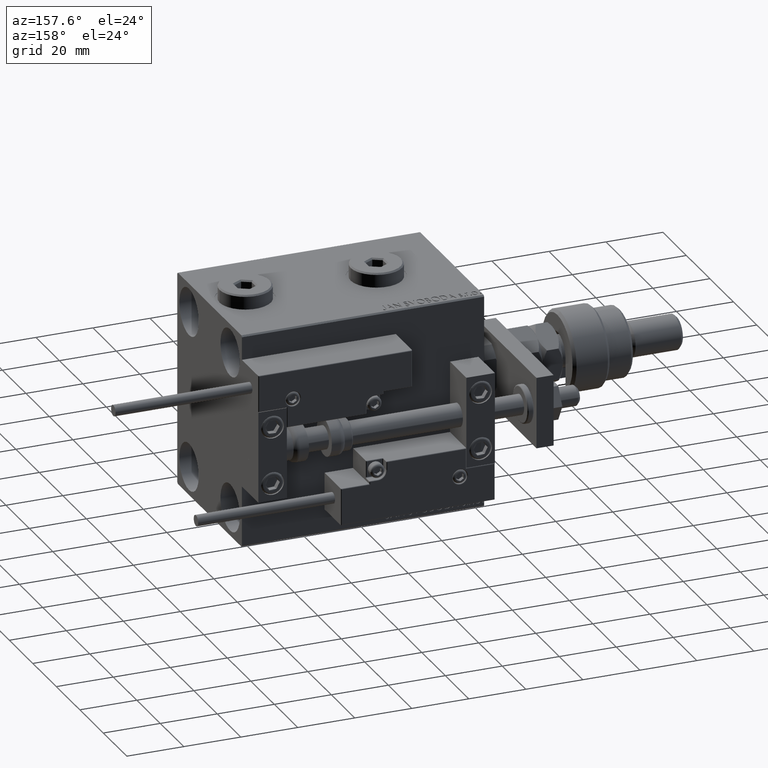
[diagram: clean part render]
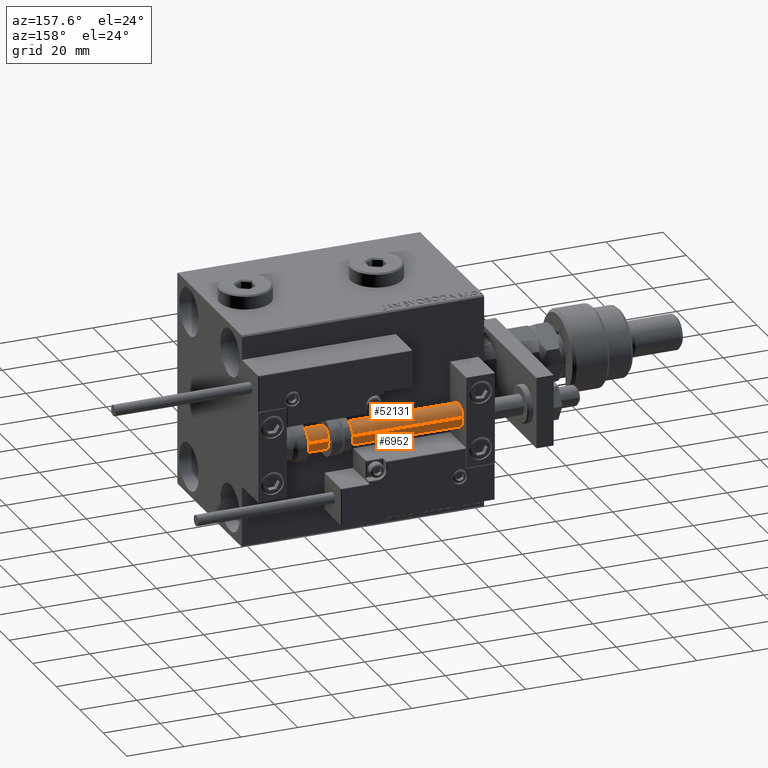
[diagram: same view with one multi-face feature highlighted, each face labeled with its STEP entity id]
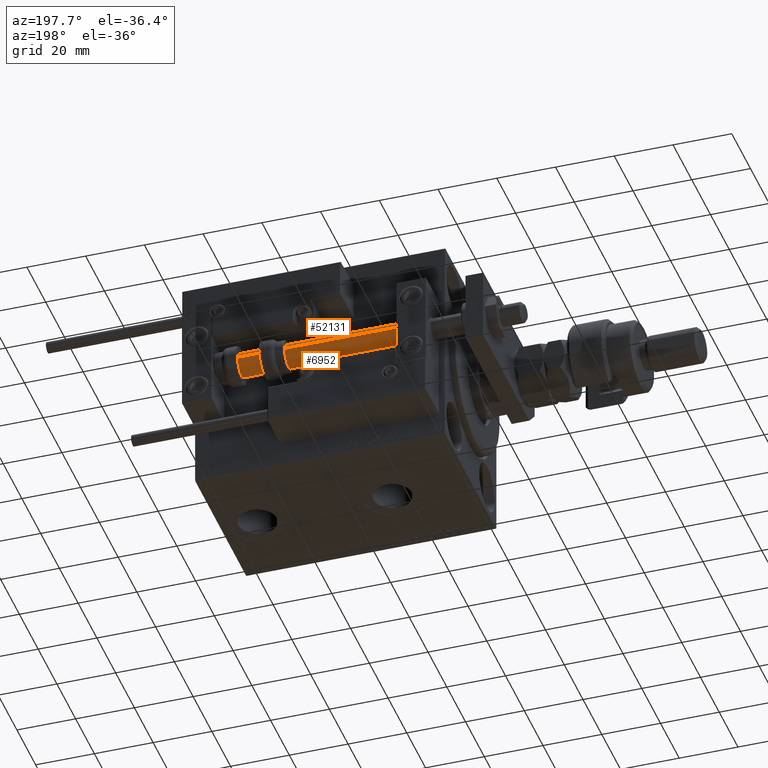
[diagram: same view with one multi-face feature highlighted, each face labeled with its STEP entity id]
A machine part, auxiliary view. The highlighted faces form ONE feature: a constant-radius fillet chain: 2 tangent blend faces with common blend radius 4 mm. The faces share edges in the B-rep.
A second angle (auxiliary view) of the same feature is appended — it is thin or edge-on in the first view.
Their STEP definitions:
[1] entity #52131 (Cylinder):
#305 = DIRECTION ( 'NONE',  ( 1.000000000000000000, 0.000000000000000000, 0.000000000000000000 ) ) ;
#1731 = CIRCLE ( 'NONE', #3509, 4.000000000000000000 ) ;
#1981 = CIRCLE ( 'NONE', #40571, 4.000000000000000000 ) ;
#3509 = AXIS2_PLACEMENT_3D ( 'NONE', #36059, #15170, #305 ) ;
#3637 = DIRECTION ( 'NONE',  ( -0.000000000000000000, -0.000000000000000000, -1.000000000000000000 ) ) ;
#3875 = DIRECTION ( 'NONE',  ( -0.000000000000000000, -0.000000000000000000, 1.000000000000000000 ) ) ;
#5148 = CARTESIAN_POINT ( 'NONE',  ( 4.000000000000000000, 4.898587196589412829E-16, 85.00000000000000000 ) ) ;
#7379 = CARTESIAN_POINT ( 'NONE',  ( -4.000000000000000000, 0.000000000000000000, 85.00000000000000000 ) ) ;
#8244 = CARTESIAN_POINT ( 'NONE',  ( 0.000000000000000000, 0.000000000000000000, 2.000000000000029310 ) ) ;
#8475 = FACE_OUTER_BOUND ( 'NONE', #54388, .T. ) ;
#8555 = EDGE_CURVE ( 'NONE', #34025, #45381, #18043, .T. ) ;
#9023 = DIRECTION ( 'NONE',  ( -1.000000000000000000, 0.000000000000000000, 0.000000000000000000 ) ) ;
#10608 = CARTESIAN_POINT ( 'NONE',  ( -4.000000000000000000, 0.000000000000000000, 2.000000000000029310 ) ) ;
#11775 = VERTEX_POINT ( 'NONE', #7379 ) ;
#12849 = DIRECTION ( 'NONE',  ( -0.000000000000000000, -0.000000000000000000, -1.000000000000000000 ) ) ;
#13652 = DIRECTION ( 'NONE',  ( -0.000000000000000000, -0.000000000000000000, -1.000000000000000000 ) ) ;
#15170 = DIRECTION ( 'NONE',  ( 0.000000000000000000, 0.000000000000000000, 1.000000000000000000 ) ) ;
#17022 = DIRECTION ( 'NONE',  ( 1.000000000000000000, 0.000000000000000000, 0.000000000000000000 ) ) ;
#18043 = LINE ( 'NONE', #5148, #20052 ) ;
#19154 = AXIS2_PLACEMENT_3D ( 'NONE', #21913, #12849, #9023 ) ;
#20052 = VECTOR ( 'NONE', #13652, 1000.000000000000000 ) ;
#21913 = CARTESIAN_POINT ( 'NONE',  ( 0.000000000000000000, 0.000000000000000000, 85.00000000000000000 ) ) ;
#25204 = CYLINDRICAL_SURFACE ( 'NONE', #19154, 4.000000000000000000 ) ;
#25712 = VERTEX_POINT ( 'NONE', #10608 ) ;
#30334 = EDGE_CURVE ( 'NONE', #11775, #25712, #40998, .T. ) ;
#32906 = EDGE_CURVE ( 'NONE', #34025, #11775, #1731, .T. ) ;
#34025 = VERTEX_POINT ( 'NONE', #37215 ) ;
#35933 = ORIENTED_EDGE ( 'NONE', *, *, #8555, .T. ) ;
#36059 = CARTESIAN_POINT ( 'NONE',  ( 0.000000000000000000, 0.000000000000000000, 85.00000000000000000 ) ) ;
#37215 = CARTESIAN_POINT ( 'NONE',  ( 4.000000000000000000, 4.898587196589412829E-16, 85.00000000000000000 ) ) ;
#38207 = EDGE_CURVE ( 'NONE', #45381, #25712, #1981, .T. ) ;
#40571 = AXIS2_PLACEMENT_3D ( 'NONE', #8244, #3875, #17022 ) ;
#40998 = LINE ( 'NONE', #41277, #44662 ) ;
#41277 = CARTESIAN_POINT ( 'NONE',  ( -4.000000000000000000, 0.000000000000000000, 85.00000000000000000 ) ) ;
#41362 = CARTESIAN_POINT ( 'NONE',  ( 4.000000000000000000, 4.898587196589412829E-16, 2.000000000000029310 ) ) ;
#42168 = ORIENTED_EDGE ( 'NONE', *, *, #32906, .F. ) ;
#43276 = ORIENTED_EDGE ( 'NONE', *, *, #30334, .F. ) ;
#44662 = VECTOR ( 'NONE', #3637, 1000.000000000000000 ) ;
#45285 = ORIENTED_EDGE ( 'NONE', *, *, #38207, .T. ) ;
#45381 = VERTEX_POINT ( 'NONE', #41362 ) ;
#52131 = ADVANCED_FACE ( 'NONE', ( #8475 ), #25204, .T. ) ;
#54388 = EDGE_LOOP ( 'NONE', ( #42168, #35933, #45285, #43276 ) ) ;
[2] entity #6952 (Cylinder):
#3637 = DIRECTION ( 'NONE',  ( -0.000000000000000000, -0.000000000000000000, -1.000000000000000000 ) ) ;
#5063 = FACE_OUTER_BOUND ( 'NONE', #31613, .T. ) ;
#5148 = CARTESIAN_POINT ( 'NONE',  ( 4.000000000000000000, 4.898587196589412829E-16, 85.00000000000000000 ) ) ;
#6952 = ADVANCED_FACE ( 'NONE', ( #5063 ), #43537, .T. ) ;
#7379 = CARTESIAN_POINT ( 'NONE',  ( -4.000000000000000000, 0.000000000000000000, 85.00000000000000000 ) ) ;
#8555 = EDGE_CURVE ( 'NONE', #34025, #45381, #18043, .T. ) ;
#9255 = CARTESIAN_POINT ( 'NONE',  ( 0.000000000000000000, 0.000000000000000000, 85.00000000000000000 ) ) ;
#10091 = DIRECTION ( 'NONE',  ( -0.000000000000000000, -0.000000000000000000, 1.000000000000000000 ) ) ;
#10608 = CARTESIAN_POINT ( 'NONE',  ( -4.000000000000000000, 0.000000000000000000, 2.000000000000029310 ) ) ;
#11657 = CARTESIAN_POINT ( 'NONE',  ( 0.000000000000000000, 0.000000000000000000, 2.000000000000029310 ) ) ;
#11775 = VERTEX_POINT ( 'NONE', #7379 ) ;
#13581 = DIRECTION ( 'NONE',  ( -0.000000000000000000, -0.000000000000000000, -1.000000000000000000 ) ) ;
#13652 = DIRECTION ( 'NONE',  ( -0.000000000000000000, -0.000000000000000000, -1.000000000000000000 ) ) ;
#13841 = DIRECTION ( 'NONE',  ( -1.000000000000000000, 0.000000000000000000, 0.000000000000000000 ) ) ;
#17331 = AXIS2_PLACEMENT_3D ( 'NONE', #11657, #10091, #40790 ) ;
#18043 = LINE ( 'NONE', #5148, #20052 ) ;
#20052 = VECTOR ( 'NONE', #13652, 1000.000000000000000 ) ;
#22559 = ORIENTED_EDGE ( 'NONE', *, *, #29242, .T. ) ;
#23441 = ORIENTED_EDGE ( 'NONE', *, *, #26817, .F. ) ;
#25712 = VERTEX_POINT ( 'NONE', #10608 ) ;
#26817 = EDGE_CURVE ( 'NONE', #11775, #34025, #34940, .T. ) ;
#27880 = AXIS2_PLACEMENT_3D ( 'NONE', #47397, #13581, #13841 ) ;
#29242 = EDGE_CURVE ( 'NONE', #25712, #45381, #41047, .T. ) ;
#30334 = EDGE_CURVE ( 'NONE', #11775, #25712, #40998, .T. ) ;
#31613 = EDGE_LOOP ( 'NONE', ( #36411, #23441, #33184, #22559 ) ) ;
#33184 = ORIENTED_EDGE ( 'NONE', *, *, #30334, .T. ) ;
#34025 = VERTEX_POINT ( 'NONE', #37215 ) ;
#34940 = CIRCLE ( 'NONE', #39202, 4.000000000000000000 ) ;
#36411 = ORIENTED_EDGE ( 'NONE', *, *, #8555, .F. ) ;
#37215 = CARTESIAN_POINT ( 'NONE',  ( 4.000000000000000000, 4.898587196589412829E-16, 85.00000000000000000 ) ) ;
#39178 = DIRECTION ( 'NONE',  ( 0.000000000000000000, 0.000000000000000000, 1.000000000000000000 ) ) ;
#39202 = AXIS2_PLACEMENT_3D ( 'NONE', #9255, #39178, #43060 ) ;
#40790 = DIRECTION ( 'NONE',  ( 1.000000000000000000, 0.000000000000000000, 0.000000000000000000 ) ) ;
#40998 = LINE ( 'NONE', #41277, #44662 ) ;
#41047 = CIRCLE ( 'NONE', #17331, 4.000000000000000000 ) ;
#41277 = CARTESIAN_POINT ( 'NONE',  ( -4.000000000000000000, 0.000000000000000000, 85.00000000000000000 ) ) ;
#41362 = CARTESIAN_POINT ( 'NONE',  ( 4.000000000000000000, 4.898587196589412829E-16, 2.000000000000029310 ) ) ;
#43060 = DIRECTION ( 'NONE',  ( 1.000000000000000000, 0.000000000000000000, 0.000000000000000000 ) ) ;
#43537 = CYLINDRICAL_SURFACE ( 'NONE', #27880, 4.000000000000000000 ) ;
#44662 = VECTOR ( 'NONE', #3637, 1000.000000000000000 ) ;
#45381 = VERTEX_POINT ( 'NONE', #41362 ) ;
#47397 = CARTESIAN_POINT ( 'NONE',  ( 0.000000000000000000, 0.000000000000000000, 85.00000000000000000 ) ) ;